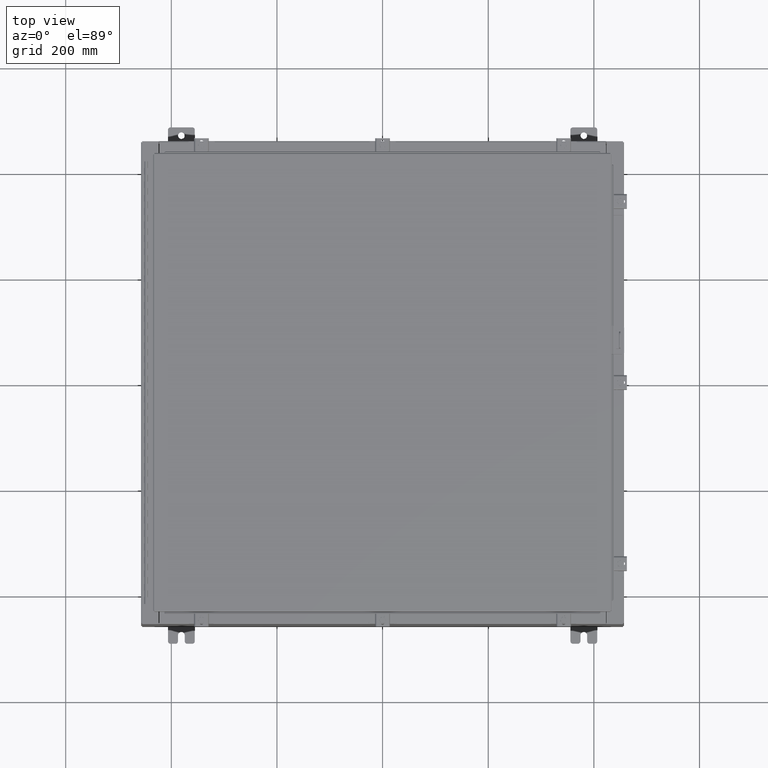
[diagram: clean part render]
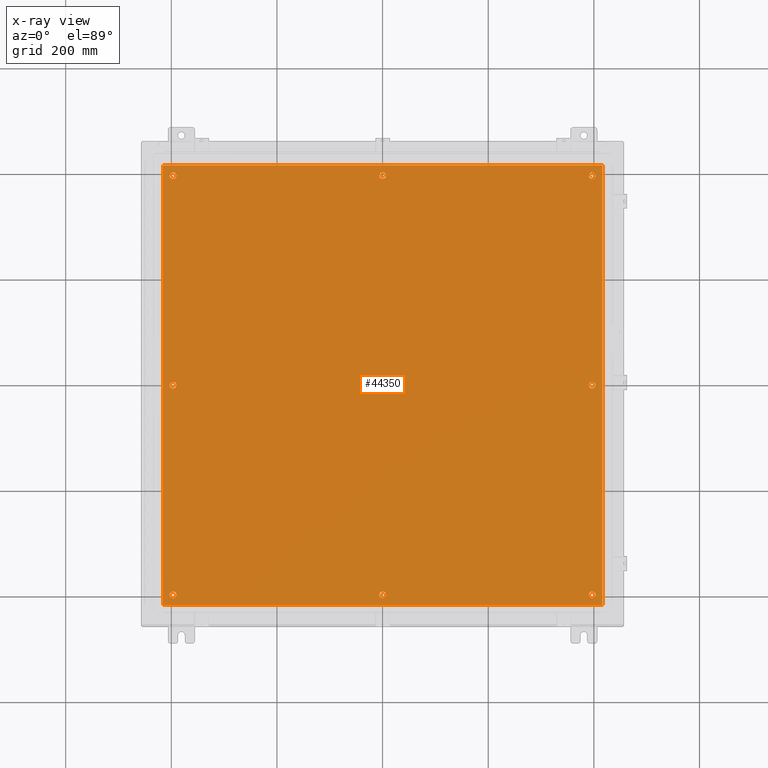
[diagram: x-ray — body ghosted, one internal face saturated and labeled with its STEP entity id]
A machine part, top view, then the same camera in x-ray: the body is ghosted and one INTERNAL B-rep face — a face not visible from any outside direction — is saturated and labeled: STEP entity #44350.
In plain terms, the highlighted planar face has unit normal (0, 0, -1).
Its self-contained STEP definition (entity closure, byte-faithful):
#305 = DIRECTION ( 'NONE',  ( -0.0000000000000000000, -0.0000000000000000000, 1.000000000000000000 ) ) ;
#419 = CARTESIAN_POINT ( 'NONE',  ( 16.38299999999999900, -16.38299999999999600, -0.1040000000000008600 ) ) ;
#748 = DIRECTION ( 'NONE',  ( -0.0000000000000000000, -0.0000000000000000000, 1.000000000000000000 ) ) ;
#797 = AXIS2_PLACEMENT_3D ( 'NONE', #35951, #14454, #39541 ) ;
#1052 = FACE_BOUND ( 'NONE', #6361, .T. ) ;
#1160 = CIRCLE ( 'NONE', #16686, 0.2499999999999998600 ) ;
#1473 = CARTESIAN_POINT ( 'NONE',  ( 15.62500000000000400, -15.62500000000000400, -0.1040000000000000400 ) ) ;
#1751 = EDGE_CURVE ( 'NONE', #27937, #43195, #7007, .T. ) ;
#1876 = ORIENTED_EDGE ( 'NONE', *, *, #39030, .F. ) ;
#2087 = CIRCLE ( 'NONE', #27119, 0.2499999999999987000 ) ;
#2187 = CIRCLE ( 'NONE', #2241, 0.2500000000000008900 ) ;
#2192 = FACE_BOUND ( 'NONE', #13497, .T. ) ;
#2241 = AXIS2_PLACEMENT_3D ( 'NONE', #46383, #24900, #3477 ) ;
#2289 = DIRECTION ( 'NONE',  ( -0.0000000000000000000, -0.0000000000000000000, 1.000000000000000000 ) ) ;
#2410 = CARTESIAN_POINT ( 'NONE',  ( 0.2500000000000011700, -15.62500000000000400, -0.1040000000000000400 ) ) ;
#2611 = DIRECTION ( 'NONE',  ( -0.0000000000000000000, -0.0000000000000000000, 1.000000000000000000 ) ) ;
#2704 = EDGE_CURVE ( 'NONE', #32743, #37415, #33906, .T. ) ;
#2785 = VERTEX_POINT ( 'NONE', #40073 ) ;
#3286 = FACE_BOUND ( 'NONE', #32899, .T. ) ;
#3477 = DIRECTION ( 'NONE',  ( -1.000000000000000000, 0.0000000000000000000, 0.0000000000000000000 ) ) ;
#3585 = AXIS2_PLACEMENT_3D ( 'NONE', #39517, #18055, #43105 ) ;
#3863 = DIRECTION ( 'NONE',  ( -0.0000000000000000000, -0.0000000000000000000, 1.000000000000000000 ) ) ;
#3995 = CARTESIAN_POINT ( 'NONE',  ( 15.62500000000000400, 15.62500000000000400, -0.1040000000000000400 ) ) ;
#4036 = ORIENTED_EDGE ( 'NONE', *, *, #31997, .T. ) ;
#4089 = CARTESIAN_POINT ( 'NONE',  ( -15.37500000000000400, -1.922624082677663000E-015, -0.1040000000000000400 ) ) ;
#4115 = EDGE_LOOP ( 'NONE', ( #4904, #17499 ) ) ;
#4183 = EDGE_CURVE ( 'NONE', #21718, #2785, #15811, .T. ) ;
#4411 = CARTESIAN_POINT ( 'NONE',  ( 16.38299999999999900, -16.38299999999999600, -0.1040000000000008600 ) ) ;
#4573 = CARTESIAN_POINT ( 'NONE',  ( -0.2499999999999998600, 15.62500000000000400, -0.1040000000000000400 ) ) ;
#4610 = DIRECTION ( 'NONE',  ( -1.000000000000000000, -0.0000000000000000000, -0.0000000000000000000 ) ) ;
#4740 = VERTEX_POINT ( 'NONE', #19601 ) ;
#4833 = EDGE_LOOP ( 'NONE', ( #7067, #16512 ) ) ;
#4904 = ORIENTED_EDGE ( 'NONE', *, *, #27337, .T. ) ;
#4960 = ORIENTED_EDGE ( 'NONE', *, *, #11694, .T. ) ;
#5037 = DIRECTION ( 'NONE',  ( -0.0000000000000000000, -0.0000000000000000000, 1.000000000000000000 ) ) ;
#5087 = DIRECTION ( 'NONE',  ( -1.000000000000000000, 0.0000000000000000000, 0.0000000000000000000 ) ) ;
#5130 = AXIS2_PLACEMENT_3D ( 'NONE', #5167, #30231, #8762 ) ;
#5167 = CARTESIAN_POINT ( 'NONE',  ( -15.62500000000000400, -1.922624082677663000E-015, -0.1040000000000000400 ) ) ;
#5795 = CIRCLE ( 'NONE', #43076, 0.2499999999999987000 ) ;
#6057 = EDGE_LOOP ( 'NONE', ( #25987, #1876, #22478, #38215 ) ) ;
#6361 = EDGE_LOOP ( 'NONE', ( #13178, #12685 ) ) ;
#6409 = EDGE_CURVE ( 'NONE', #46203, #23806, #2187, .T. ) ;
#6540 = CIRCLE ( 'NONE', #797, 0.2500000000000008900 ) ;
#6617 = CARTESIAN_POINT ( 'NONE',  ( 15.87500000000000500, 1.904397164657816300E-015, -0.1040000000000000400 ) ) ;
#6753 = VECTOR ( 'NONE', #11599, 39.37007874015748100 ) ;
#7007 = CIRCLE ( 'NONE', #14956, 0.2500000000000011700 ) ;
#7067 = ORIENTED_EDGE ( 'NONE', *, *, #4183, .T. ) ;
#7566 = VERTEX_POINT ( 'NONE', #13029 ) ;
#7605 = DIRECTION ( 'NONE',  ( -1.000000000000000000, 0.0000000000000000000, 0.0000000000000000000 ) ) ;
#8602 = EDGE_CURVE ( 'NONE', #23806, #46203, #29458, .T. ) ;
#8762 = DIRECTION ( 'NONE',  ( -1.000000000000000000, 0.0000000000000000000, 0.0000000000000000000 ) ) ;
#9043 = CARTESIAN_POINT ( 'NONE',  ( -15.87500000000000200, -15.62500000000000400, -0.1040000000000000400 ) ) ;
#9516 = DIRECTION ( 'NONE',  ( -0.0000000000000000000, -0.0000000000000000000, 1.000000000000000000 ) ) ;
#9550 = CIRCLE ( 'NONE', #3585, 0.2499999999999987000 ) ;
#10348 = DIRECTION ( 'NONE',  ( 0.0000000000000000000, -1.000000000000000000, 0.0000000000000000000 ) ) ;
#10558 = FACE_BOUND ( 'NONE', #30546, .T. ) ;
#11262 = VERTEX_POINT ( 'NONE', #419 ) ;
#11303 = VERTEX_POINT ( 'NONE', #36445 ) ;
#11599 = DIRECTION ( 'NONE',  ( 0.0000000000000000000, 1.000000000000000000, 0.0000000000000000000 ) ) ;
#11694 = EDGE_CURVE ( 'NONE', #34398, #22625, #9550, .T. ) ;
#11873 = ORIENTED_EDGE ( 'NONE', *, *, #24913, .T. ) ;
#12570 = DIRECTION ( 'NONE',  ( 0.0000000000000000000, 0.0000000000000000000, -1.000000000000000000 ) ) ;
#12685 = ORIENTED_EDGE ( 'NONE', *, *, #35861, .T. ) ;
#13029 = CARTESIAN_POINT ( 'NONE',  ( 15.37500000000000500, 15.62500000000000400, -0.1040000000000000400 ) ) ;
#13178 = ORIENTED_EDGE ( 'NONE', *, *, #45737, .T. ) ;
#13497 = EDGE_LOOP ( 'NONE', ( #41676, #35978 ) ) ;
#13609 = VERTEX_POINT ( 'NONE', #36161 ) ;
#13633 = DIRECTION ( 'NONE',  ( -0.0000000000000000000, -0.0000000000000000000, 1.000000000000000000 ) ) ;
#14123 = AXIS2_PLACEMENT_3D ( 'NONE', #23707, #2289, #27335 ) ;
#14372 = EDGE_CURVE ( 'NONE', #2785, #21718, #2087, .T. ) ;
#14454 = DIRECTION ( 'NONE',  ( -0.0000000000000000000, -0.0000000000000000000, 1.000000000000000000 ) ) ;
#14956 = AXIS2_PLACEMENT_3D ( 'NONE', #40933, #19478, #44520 ) ;
#15811 = CIRCLE ( 'NONE', #14123, 0.2499999999999987000 ) ;
#16253 = LINE ( 'NONE', #4411, #6753 ) ;
#16469 = ORIENTED_EDGE ( 'NONE', *, *, #1751, .T. ) ;
#16492 = CARTESIAN_POINT ( 'NONE',  ( -15.87500000000000500, -1.892007912698979300E-015, -0.1040000000000000400 ) ) ;
#16512 = ORIENTED_EDGE ( 'NONE', *, *, #14372, .T. ) ;
#16686 = AXIS2_PLACEMENT_3D ( 'NONE', #38647, #17132, #42208 ) ;
#16819 = CARTESIAN_POINT ( 'NONE',  ( -15.37500000000000500, 15.62500000000000400, -0.1040000000000000400 ) ) ;
#17132 = DIRECTION ( 'NONE',  ( -0.0000000000000000000, -0.0000000000000000000, 1.000000000000000000 ) ) ;
#17355 = VECTOR ( 'NONE', #4610, 39.37007874015748100 ) ;
#17499 = ORIENTED_EDGE ( 'NONE', *, *, #28609, .T. ) ;
#18055 = DIRECTION ( 'NONE',  ( -0.0000000000000000000, -0.0000000000000000000, 1.000000000000000000 ) ) ;
#18235 = EDGE_CURVE ( 'NONE', #4740, #11262, #34864, .T. ) ;
#19377 = EDGE_CURVE ( 'NONE', #13609, #31551, #28057, .T. ) ;
#19478 = DIRECTION ( 'NONE',  ( -0.0000000000000000000, -0.0000000000000000000, 1.000000000000000000 ) ) ;
#19601 = CARTESIAN_POINT ( 'NONE',  ( -16.38299999999999900, -16.38299999999999600, -0.1039999999999997600 ) ) ;
#19644 = PLANE ( 'NONE',  #37399 ) ;
#20089 = FACE_BOUND ( 'NONE', #4833, .T. ) ;
#21192 = FACE_BOUND ( 'NONE', #31683, .T. ) ;
#21478 = VERTEX_POINT ( 'NONE', #39369 ) ;
#21566 = CARTESIAN_POINT ( 'NONE',  ( -15.37500000000000500, -15.62500000000000400, -0.1040000000000000400 ) ) ;
#21718 = VERTEX_POINT ( 'NONE', #38870 ) ;
#21721 = CARTESIAN_POINT ( 'NONE',  ( -15.62500000000000400, -1.922624082677663000E-015, -0.1040000000000000400 ) ) ;
#21907 = AXIS2_PLACEMENT_3D ( 'NONE', #25286, #3863, #28942 ) ;
#22183 = CARTESIAN_POINT ( 'NONE',  ( 15.62500000000000400, 1.904397164657816300E-015, -0.1040000000000000400 ) ) ;
#22478 = ORIENTED_EDGE ( 'NONE', *, *, #19377, .F. ) ;
#22625 = VERTEX_POINT ( 'NONE', #9043 ) ;
#23247 = VERTEX_POINT ( 'NONE', #16819 ) ;
#23707 = CARTESIAN_POINT ( 'NONE',  ( 15.62500000000000400, -15.62500000000000400, -0.1040000000000000400 ) ) ;
#23806 = VERTEX_POINT ( 'NONE', #31088 ) ;
#23881 = AXIS2_PLACEMENT_3D ( 'NONE', #22183, #748, #25796 ) ;
#24047 = CARTESIAN_POINT ( 'NONE',  ( 0.0000000000000000000, 15.62500000000000400, -0.1040000000000000400 ) ) ;
#24483 = AXIS2_PLACEMENT_3D ( 'NONE', #35105, #13633, #38738 ) ;
#24900 = DIRECTION ( 'NONE',  ( -0.0000000000000000000, -0.0000000000000000000, 1.000000000000000000 ) ) ;
#24913 = EDGE_CURVE ( 'NONE', #21478, #7566, #33231, .T. ) ;
#25286 = CARTESIAN_POINT ( 'NONE',  ( 0.0000000000000000000, -15.62500000000000400, -0.1040000000000000400 ) ) ;
#25309 = VECTOR ( 'NONE', #26154, 39.37007874015748100 ) ;
#25329 = DIRECTION ( 'NONE',  ( -1.000000000000000000, 0.0000000000000000000, 0.0000000000000000000 ) ) ;
#25621 = EDGE_CURVE ( 'NONE', #7566, #21478, #5795, .T. ) ;
#25796 = DIRECTION ( 'NONE',  ( -1.000000000000000000, 0.0000000000000000000, 0.0000000000000000000 ) ) ;
#25872 = LINE ( 'NONE', #31825, #34291 ) ;
#25974 = AXIS2_PLACEMENT_3D ( 'NONE', #24047, #2611, #27677 ) ;
#25987 = ORIENTED_EDGE ( 'NONE', *, *, #18235, .F. ) ;
#26053 = CIRCLE ( 'NONE', #5130, 0.2500000000000008900 ) ;
#26057 = EDGE_CURVE ( 'NONE', #22625, #34398, #34319, .T. ) ;
#26154 = DIRECTION ( 'NONE',  ( 1.000000000000000000, -0.0000000000000000000, -0.0000000000000000000 ) ) ;
#26482 = CARTESIAN_POINT ( 'NONE',  ( -15.62500000000000500, 15.62500000000000400, -0.1040000000000000400 ) ) ;
#26527 = DIRECTION ( 'NONE',  ( -0.0000000000000000000, -0.0000000000000000000, 1.000000000000000000 ) ) ;
#26855 = CARTESIAN_POINT ( 'NONE',  ( 0.0000000000000000000, 0.0000000000000000000, -0.1040000000000000400 ) ) ;
#27119 = AXIS2_PLACEMENT_3D ( 'NONE', #1473, #26527, #5087 ) ;
#27335 = DIRECTION ( 'NONE',  ( -1.000000000000000000, 0.0000000000000000000, 0.0000000000000000000 ) ) ;
#27337 = EDGE_CURVE ( 'NONE', #11303, #35786, #31428, .T. ) ;
#27677 = DIRECTION ( 'NONE',  ( -1.000000000000000000, 0.0000000000000000000, 0.0000000000000000000 ) ) ;
#27937 = VERTEX_POINT ( 'NONE', #2410 ) ;
#28057 = LINE ( 'NONE', #36735, #17355 ) ;
#28087 = AXIS2_PLACEMENT_3D ( 'NONE', #30993, #9516, #34559 ) ;
#28609 = EDGE_CURVE ( 'NONE', #35786, #11303, #1160, .T. ) ;
#28942 = DIRECTION ( 'NONE',  ( -1.000000000000000000, 0.0000000000000000000, 0.0000000000000000000 ) ) ;
#29080 = DIRECTION ( 'NONE',  ( -0.0000000000000000000, -0.0000000000000000000, 1.000000000000000000 ) ) ;
#29458 = CIRCLE ( 'NONE', #23881, 0.2500000000000008900 ) ;
#29636 = CARTESIAN_POINT ( 'NONE',  ( -0.2500000000000011700, -15.62500000000000400, -0.1040000000000000400 ) ) ;
#29652 = FACE_BOUND ( 'NONE', #39519, .T. ) ;
#30109 = DIRECTION ( 'NONE',  ( -1.000000000000000000, 0.0000000000000000000, 0.0000000000000000000 ) ) ;
#30204 = ORIENTED_EDGE ( 'NONE', *, *, #26057, .T. ) ;
#30231 = DIRECTION ( 'NONE',  ( -0.0000000000000000000, -0.0000000000000000000, 1.000000000000000000 ) ) ;
#30546 = EDGE_LOOP ( 'NONE', ( #11873, #31619 ) ) ;
#30993 = CARTESIAN_POINT ( 'NONE',  ( 15.62500000000000400, 15.62500000000000400, -0.1040000000000000400 ) ) ;
#31088 = CARTESIAN_POINT ( 'NONE',  ( 15.37500000000000400, 1.935013334636500000E-015, -0.1040000000000000400 ) ) ;
#31229 = CARTESIAN_POINT ( 'NONE',  ( -16.38299999999999900, 16.38300000000000300, -0.1040000000000008600 ) ) ;
#31428 = CIRCLE ( 'NONE', #25974, 0.2499999999999998600 ) ;
#31540 = AXIS2_PLACEMENT_3D ( 'NONE', #21721, #305, #25329 ) ;
#31551 = VERTEX_POINT ( 'NONE', #31229 ) ;
#31619 = ORIENTED_EDGE ( 'NONE', *, *, #25621, .T. ) ;
#31683 = EDGE_LOOP ( 'NONE', ( #4036, #31715 ) ) ;
#31715 = ORIENTED_EDGE ( 'NONE', *, *, #2704, .T. ) ;
#31825 = CARTESIAN_POINT ( 'NONE',  ( -16.38299999999999900, 16.38300000000000300, -0.1040000000000008600 ) ) ;
#31997 = EDGE_CURVE ( 'NONE', #37415, #32743, #26053, .T. ) ;
#32743 = VERTEX_POINT ( 'NONE', #16492 ) ;
#32899 = EDGE_LOOP ( 'NONE', ( #16469, #35061 ) ) ;
#33231 = CIRCLE ( 'NONE', #28087, 0.2499999999999987000 ) ;
#33906 = CIRCLE ( 'NONE', #31540, 0.2500000000000008900 ) ;
#34291 = VECTOR ( 'NONE', #10348, 39.37007874015748100 ) ;
#34319 = CIRCLE ( 'NONE', #24483, 0.2499999999999987000 ) ;
#34398 = VERTEX_POINT ( 'NONE', #21566 ) ;
#34559 = DIRECTION ( 'NONE',  ( -1.000000000000000000, 0.0000000000000000000, 0.0000000000000000000 ) ) ;
#34864 = LINE ( 'NONE', #40408, #25309 ) ;
#35061 = ORIENTED_EDGE ( 'NONE', *, *, #40552, .T. ) ;
#35105 = CARTESIAN_POINT ( 'NONE',  ( -15.62500000000000400, -15.62500000000000400, -0.1040000000000000400 ) ) ;
#35786 = VERTEX_POINT ( 'NONE', #4573 ) ;
#35861 = EDGE_CURVE ( 'NONE', #43167, #23247, #43523, .T. ) ;
#35951 = CARTESIAN_POINT ( 'NONE',  ( -15.62500000000000500, 15.62500000000000400, -0.1040000000000000400 ) ) ;
#35978 = ORIENTED_EDGE ( 'NONE', *, *, #8602, .T. ) ;
#36161 = CARTESIAN_POINT ( 'NONE',  ( 16.38299999999999900, 16.38300000000000300, -0.1040000000000008600 ) ) ;
#36445 = CARTESIAN_POINT ( 'NONE',  ( 0.2499999999999998600, 15.62500000000000400, -0.1040000000000000400 ) ) ;
#36735 = CARTESIAN_POINT ( 'NONE',  ( 16.50000000000000000, 16.38299999999999900, -0.1040000000000008600 ) ) ;
#37399 = AXIS2_PLACEMENT_3D ( 'NONE', #26855, #12570, #37686 ) ;
#37415 = VERTEX_POINT ( 'NONE', #4089 ) ;
#37686 = DIRECTION ( 'NONE',  ( -1.000000000000000000, 0.0000000000000000000, -0.0000000000000000000 ) ) ;
#38063 = FACE_OUTER_BOUND ( 'NONE', #6057, .T. ) ;
#38215 = ORIENTED_EDGE ( 'NONE', *, *, #43181, .F. ) ;
#38647 = CARTESIAN_POINT ( 'NONE',  ( 0.0000000000000000000, 15.62500000000000400, -0.1040000000000000400 ) ) ;
#38738 = DIRECTION ( 'NONE',  ( -1.000000000000000000, 0.0000000000000000000, 0.0000000000000000000 ) ) ;
#38870 = CARTESIAN_POINT ( 'NONE',  ( 15.87500000000000200, -15.62500000000000400, -0.1040000000000000400 ) ) ;
#39030 = EDGE_CURVE ( 'NONE', #31551, #4740, #25872, .T. ) ;
#39160 = FACE_BOUND ( 'NONE', #4115, .T. ) ;
#39369 = CARTESIAN_POINT ( 'NONE',  ( 15.87500000000000200, 15.62500000000000400, -0.1040000000000000400 ) ) ;
#39517 = CARTESIAN_POINT ( 'NONE',  ( -15.62500000000000400, -15.62500000000000400, -0.1040000000000000400 ) ) ;
#39519 = EDGE_LOOP ( 'NONE', ( #4960, #30204 ) ) ;
#39541 = DIRECTION ( 'NONE',  ( -1.000000000000000000, 0.0000000000000000000, 0.0000000000000000000 ) ) ;
#40073 = CARTESIAN_POINT ( 'NONE',  ( 15.37500000000000500, -15.62500000000000400, -0.1040000000000000400 ) ) ;
#40408 = CARTESIAN_POINT ( 'NONE',  ( -16.50000000000000000, -16.38299999999999600, -0.1039999999999997600 ) ) ;
#40552 = EDGE_CURVE ( 'NONE', #43195, #27937, #44793, .T. ) ;
#40933 = CARTESIAN_POINT ( 'NONE',  ( 0.0000000000000000000, -15.62500000000000400, -0.1040000000000000400 ) ) ;
#41676 = ORIENTED_EDGE ( 'NONE', *, *, #6409, .T. ) ;
#42208 = DIRECTION ( 'NONE',  ( -1.000000000000000000, 0.0000000000000000000, 0.0000000000000000000 ) ) ;
#43076 = AXIS2_PLACEMENT_3D ( 'NONE', #3995, #29080, #7605 ) ;
#43105 = DIRECTION ( 'NONE',  ( -1.000000000000000000, 0.0000000000000000000, 0.0000000000000000000 ) ) ;
#43167 = VERTEX_POINT ( 'NONE', #43541 ) ;
#43181 = EDGE_CURVE ( 'NONE', #11262, #13609, #16253, .T. ) ;
#43195 = VERTEX_POINT ( 'NONE', #29636 ) ;
#43523 = CIRCLE ( 'NONE', #45446, 0.2500000000000008900 ) ;
#43541 = CARTESIAN_POINT ( 'NONE',  ( -15.87500000000000700, 15.62500000000000400, -0.1040000000000000400 ) ) ;
#44350 = ADVANCED_FACE ( 'NONE', ( #3286, #39160, #2192, #21192, #29652, #20089, #10558, #1052, #38063 ), #19644, .T. ) ;
#44520 = DIRECTION ( 'NONE',  ( -1.000000000000000000, 0.0000000000000000000, 0.0000000000000000000 ) ) ;
#44793 = CIRCLE ( 'NONE', #21907, 0.2500000000000011700 ) ;
#45446 = AXIS2_PLACEMENT_3D ( 'NONE', #26482, #5037, #30109 ) ;
#45737 = EDGE_CURVE ( 'NONE', #23247, #43167, #6540, .T. ) ;
#46203 = VERTEX_POINT ( 'NONE', #6617 ) ;
#46383 = CARTESIAN_POINT ( 'NONE',  ( 15.62500000000000400, 1.904397164657816300E-015, -0.1040000000000000400 ) ) ;